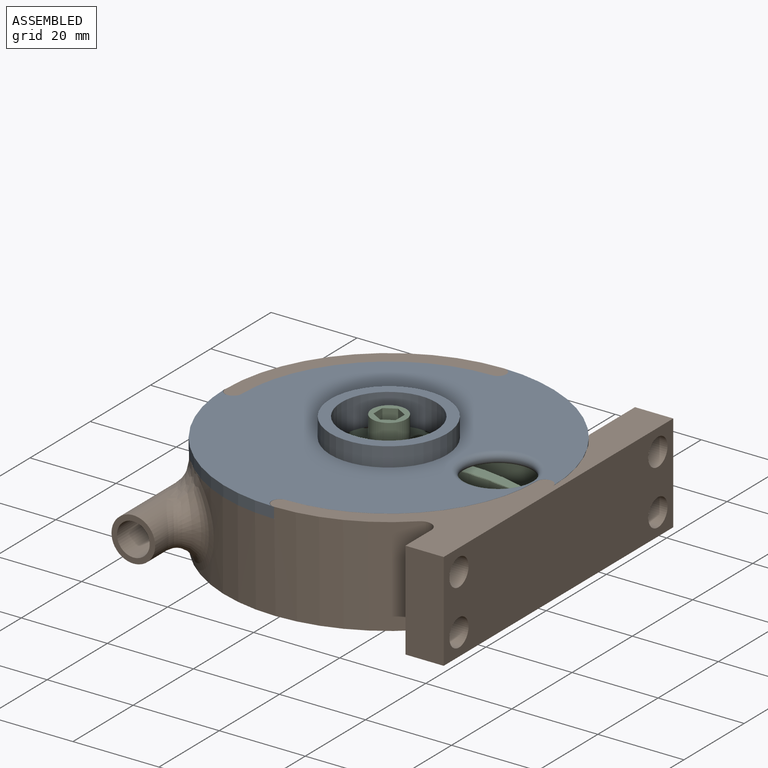
[diagram: assembled view]
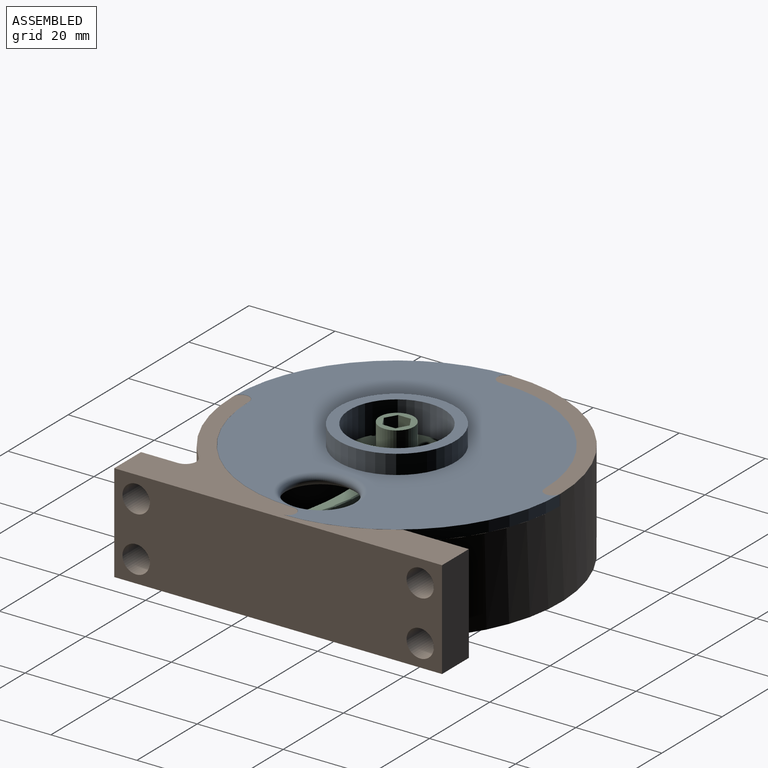
[diagram: assembled view, second angle]
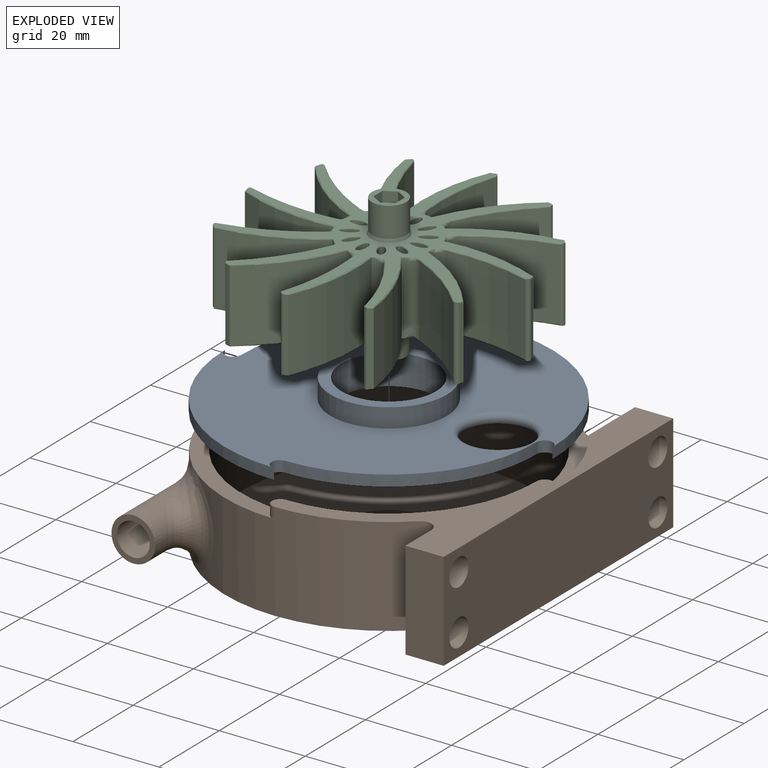
[diagram: exploded view]
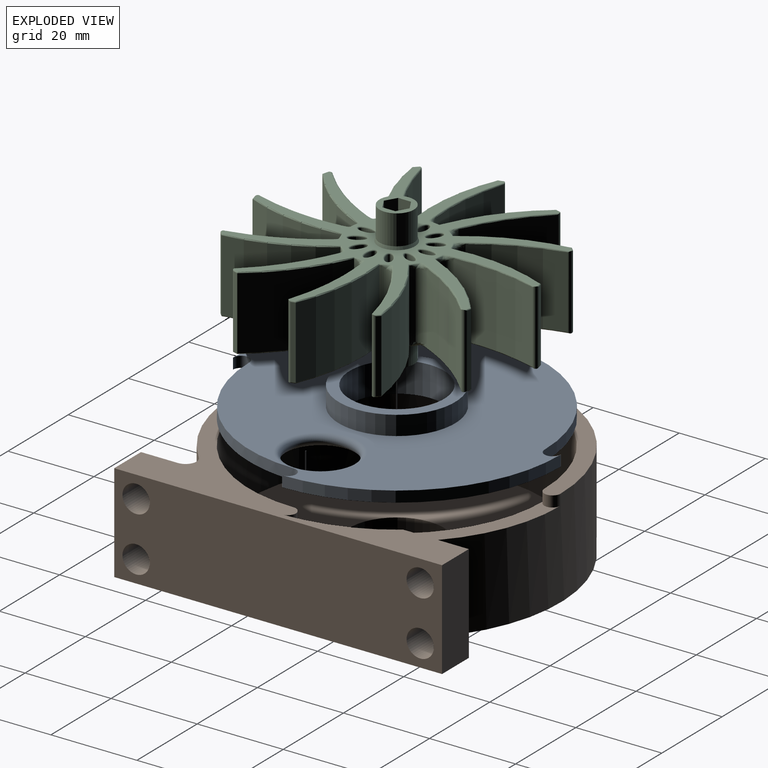
[diagram: exploded view, second angle]
ASSEMBLY  parts=3 mates=2
PART A: 14 faces, bbox 76.2x76.2x7 mm
  f0: cylinder r=1.91mm len=3.81mm, axis (0,0,-1), area 15.2mm2, adj f1,f7,f9,f10
  f1: cylinder r=38.1mm len=38.1mm, axis (0,0,-1), area 152mm2, adj f0,f2,f9,f10
  f2: cylinder r=1.91mm len=3.81mm, axis (0,0,-1), area 15.2mm2, adj f1,f3,f9,f10
  f3: cylinder r=34.29mm len=34.29mm, axis (0,0,-1), area 136.8mm2, adj f2,f4,f9,f10
  f4: cylinder r=1.91mm len=3.81mm, axis (0,0,-1), area 15.2mm2, adj f3,f5,f9,f10
  f5: cylinder r=38.1mm len=38.1mm, axis (0,0,-1), area 152mm2, adj f4,f6,f9,f10
  f6: cylinder r=1.91mm len=3.81mm, axis (0,0,-1), area 15.2mm2, adj f5,f7,f9,f10
  f7: cylinder r=34.29mm len=34.29mm, axis (0,0,-1), area 136.8mm2, adj f0,f6,f9,f10
  f8: cylinder r=11mm len=22mm, axis (0,0,-1), area 483.8mm2, adj f9,f13
  f9: plane 76.2x76.2mm, normal (0,0,1), area 3475.9mm2, adj f0,f1,f2,f3,f4,f5,f6,f7
  f10: plane 76.2x76.2mm, normal (0,0,-1), area 3280.1mm2, adj f0,f1,f2,f3,f4,f5,f6,f7
  f11: torus R=8.89mm, axis (0,0,1), area 202.6mm2, adj f9,f10
  f12: cylinder r=13.54mm len=27.08mm, axis (0,0,1), area 379.4mm2, adj f10,f13
  f13: plane 27.08x27.08mm, normal (0,0,-1), area 195.8mm2, adj f8,f12
PART B: 32 faces, bbox 77.5x81.3x27.3 mm
  f0: plane 68.58x68.58mm, normal (0,0,1), area 3313.8mm2, adj f3,f6
  f1: cylinder r=38.1mm len=66.16mm, axis (0,0,-1), area 2361.5mm2, adj f5,f7,f8,f9,f10,f16,f25,f31
  f2: plane 22.86x15.24mm, normal (-1,0,0), area 149.9mm2, adj f7,f12,f21,f23,f25,f27,f28,f31
  f3: cylinder r=34.29mm len=68.58mm, axis (0,0,-1), area 4012.5mm2, adj f0,f5,f8,f9,f10,f11,f12,f15
  f4: cylinder r=38.1mm len=51.97mm, axis (0,0,-1), area 1059.1mm2, adj f5,f7,f11,f12,f16,f30
  f5: plane 38.1x38.1mm, normal (0,0,1), area 205.2mm2, adj f1,f3,f4,f9,f11
  f6: cylinder r=11mm len=22mm, axis (0,0,-1), area 483.8mm2, adj f0,f18
  f7: plane 77.47x76.2mm, normal (0,0,-1), area 4441.5mm2, adj f1,f2,f4,f17,f19,f20,f21,f22
  f8: cylinder r=1.91mm len=3.81mm, axis (0,0,-1), area 15.2mm2, adj f1,f3,f10,f25
  f9: cylinder r=1.91mm len=3.81mm, axis (0,0,-1), area 15.2mm2, adj f1,f3,f5,f10
  f10: plane 40.01x40.01mm, normal (0,0,1), area 228mm2, adj f1,f3,f8,f9
  f11: cylinder r=1.91mm len=3.81mm, axis (0,0,-1), area 15.2mm2, adj f3,f4,f5,f12
  f12: plane 76.2x41.28mm, normal (0,0,1), area 676.6mm2, adj f2,f3,f4,f11,f19,f20,f21,f22
  f13: plane 10.16x10.16mm, normal (0,-1,0), area 35.5mm2, adj f14,f15
  f14: cylinder r=5.08mm len=25.45mm, axis (0,1,0), area 417.1mm2, adj f13,f16
  f15: cylinder r=3.81mm len=33.94mm, axis (0,1,0), area 624.4mm2, adj f3,f13
  f16: bspline ~23.12x20.33mm, area 393.6mm2, adj f1,f4,f14
  f17: cylinder r=13.54mm len=27.08mm, axis (0,0,1), area 379.4mm2, adj f7,f18
  f18: plane 27.08x27.08mm, normal (0,0,-1), area 195.8mm2, adj f6,f17
  f19: plane 22.86x8.59mm, normal (-1,0,0), area 133mm2, adj f7,f12,f20,f26,f29,f30
  f20: plane 22.86x8.89mm, normal (0,-1,0), area 203.2mm2, adj f7,f12,f19,f22
  f21: plane 22.86x8.89mm, normal (0,1,0), area 203.2mm2, adj f2,f7,f12,f22
  f22: plane 76.2x22.86mm, normal (1,0,0), area 1615.3mm2, adj f7,f12,f20,f21,f26,f27,f28,f29
  f23: cylinder r=38.1mm len=22.86mm, axis (0,0,-1), area 62.3mm2, adj f2,f12,f24,f25
  f24: cylinder r=1.91mm len=3.81mm, axis (0,0,-1), area 15.2mm2, adj f3,f12,f23,f25
  f25: plane 38.1x38.1mm, normal (0,0,1), area 213.7mm2, adj f1,f2,f3,f8,f23,f24,f31
  f26: cylinder r=3.17mm len=8.89mm, axis (1,0,0), area 177.3mm2, adj f19,f22
  f27: cylinder r=3.17mm len=8.89mm, axis (1,0,0), area 177.3mm2, adj f2,f22
  f28: cylinder r=3.17mm len=8.89mm, axis (1,0,0), area 177.3mm2, adj f2,f22
  f29: cylinder r=3.17mm len=8.89mm, axis (1,0,0), area 177.3mm2, adj f19,f22
  f30: cylinder r=2.54mm len=22.86mm, axis (0,0,-1), area 135.2mm2, adj f4,f7,f12,f19
  f31: cylinder r=2.54mm len=20.32mm, axis (0,0,-1), area 120.2mm2, adj f1,f2,f7,f25
PART C: 266 faces, bbox 69.9x69.9x32.5 mm
  f0: cylinder r=2.54mm len=15.38mm, axis (0,0,-1), area 51.1mm2, adj f1,f84,f85,f251
  f1: bspline ~3.02x1.7mm, area 3.6mm2, adj f0,f24,f84,f85,f190,f191
  f2: cylinder r=2.54mm len=15.38mm, axis (0,0,-1), area 51.1mm2, adj f3,f80,f81,f250
  f3: bspline ~2.95x1.85mm, area 3.6mm2, adj f2,f26,f80,f81,f183,f185
  f4: cylinder r=2.54mm len=15.38mm, axis (0,0,-1), area 51.1mm2, adj f5,f76,f77,f249
  f5: bspline ~2.33x2.11mm, area 3.6mm2, adj f4,f28,f76,f77,f175,f177
  f6: cylinder r=2.54mm len=15.38mm, axis (0,0,-1), area 51.1mm2, adj f7,f72,f73,f248
  f7: bspline ~3.02x1.7mm, area 3.6mm2, adj f6,f30,f72,f73,f167,f169
  f8: cylinder r=2.54mm len=15.38mm, axis (0,0,-1), area 51.1mm2, adj f9,f68,f69,f247
  f9: bspline ~2.95x1.85mm, area 3.6mm2, adj f8,f32,f68,f69,f159,f161
  f10: cylinder r=2.54mm len=15.38mm, axis (0,0,-1), area 51.1mm2, adj f11,f64,f65,f246
  f11: bspline ~2.33x2.11mm, area 3.6mm2, adj f10,f34,f64,f65,f151,f153
  f12: cylinder r=2.54mm len=15.38mm, axis (0,0,-1), area 51.1mm2, adj f13,f60,f61,f245
  f13: bspline ~3.02x1.7mm, area 3.6mm2, adj f12,f36,f60,f61,f144,f145
  f14: cylinder r=2.54mm len=15.38mm, axis (0,0,-1), area 51.1mm2, adj f15,f56,f57,f244
  f15: bspline ~2.95x1.85mm, area 3.6mm2, adj f14,f38,f56,f57,f150,f152
  f16: cylinder r=2.54mm len=15.38mm, axis (0,0,-1), area 51.1mm2, adj f17,f52,f53,f243
  f17: bspline ~2.33x2.11mm, area 3.6mm2, adj f16,f40,f52,f53,f158,f160
  f18: cylinder r=2.54mm len=15.38mm, axis (0,0,-1), area 51.1mm2, adj f19,f96,f97,f242
  f19: bspline ~3.02x1.7mm, area 3.6mm2, adj f18,f42,f96,f97,f166,f168
  f20: cylinder r=2.54mm len=15.38mm, axis (0,0,-1), area 51.1mm2, adj f21,f92,f93,f241
  f21: bspline ~2.95x1.85mm, area 3.6mm2, adj f20,f44,f92,f93,f174,f176
  f22: cylinder r=2.54mm len=15.38mm, axis (0,0,-1), area 51.1mm2, adj f23,f88,f89,f240
  f23: bspline ~2.33x2.11mm, area 3.6mm2, adj f22,f46,f88,f89,f182,f184
  f24: bspline ~0.81x0.56mm, area 0mm2, adj f1,f190,f191
  f25: bspline ~0.81x0.56mm, area 0mm2, adj f238,f239,f251
  f26: bspline ~0.83x0.54mm, area 0mm2, adj f3,f183,f185
  f27: bspline ~0.83x0.54mm, area 0mm2, adj f231,f233,f250
  f28: bspline ~0.63x0.63mm, area 0mm2, adj f5,f175,f177
  f29: bspline ~0.63x0.63mm, area 0mm2, adj f223,f225,f249
  f30: bspline ~0.81x0.56mm, area 0mm2, adj f7,f167,f169
  f31: bspline ~0.81x0.56mm, area 0mm2, adj f215,f217,f248
  f32: bspline ~0.83x0.54mm, area 0mm2, adj f9,f159,f161
  f33: bspline ~0.83x0.54mm, area 0mm2, adj f207,f209,f247
  f34: bspline ~0.63x0.63mm, area 0mm2, adj f11,f151,f153
  f35: bspline ~0.63x0.63mm, area 0mm2, adj f199,f201,f246
  f36: bspline ~0.81x0.56mm, area 0mm2, adj f13,f144,f145
  f37: bspline ~0.81x0.56mm, area 0mm2, adj f192,f193,f245
  f38: bspline ~0.83x0.54mm, area 0mm2, adj f15,f150,f152
  f39: bspline ~0.83x0.54mm, area 0mm2, adj f198,f200,f244
  f40: bspline ~0.63x0.63mm, area 0mm2, adj f17,f158,f160
  f41: bspline ~0.63x0.63mm, area 0mm2, adj f206,f208,f243
  f42: bspline ~0.81x0.56mm, area 0mm2, adj f19,f166,f168
  f43: bspline ~0.81x0.56mm, area 0mm2, adj f214,f216,f242
  f44: bspline ~0.83x0.54mm, area 0mm2, adj f21,f174,f176
  f45: bspline ~0.83x0.54mm, area 0mm2, adj f222,f224,f241
  f46: bspline ~0.63x0.63mm, area 0mm2, adj f23,f182,f184
  f47: bspline ~0.63x0.63mm, area 0mm2, adj f230,f232,f240
  f48: cylinder r=4mm len=8mm, axis (0,0,-1), area 174mm2, adj f49,f264
  f49: plane 8x8mm, normal (0,0,-1), area 26.9mm2, adj f48,f102,f103,f104,f105,f106,f107
  f50: plane 16.76x0.93mm, normal (-0.96,0.26,0), area 16.1mm2, adj f51,f164,f212,f252
  f51: cylinder r=45.37mm len=18.28mm, axis (0,0,-1), area 394.2mm2, adj f50,f52,f162,f210
  f52: cylinder r=11mm len=16.76mm, axis (0,0,-1), area 9mm2, adj f16,f17,f51,f160,f208,f243
  f53: cylinder r=50.37mm len=19.68mm, axis (0,0,-1), area 333.9mm2, adj f16,f17,f158,f206,f243,f253
  f54: plane 16.76x0.93mm, normal (-0.97,-0.26,0), area 16.1mm2, adj f55,f156,f204,f253
  f55: cylinder r=45.37mm len=23.02mm, axis (0,0,-1), area 394.2mm2, adj f54,f56,f154,f202
  f56: cylinder r=11mm len=16.76mm, axis (0,0,-1), area 9mm2, adj f14,f15,f55,f152,f200,f244
  f57: cylinder r=50.37mm len=18.09mm, axis (0,0,-1), area 333.9mm2, adj f14,f15,f150,f198,f244,f254
  f58: plane 16.76x0.68mm, normal (-0.71,-0.7,0), area 16.1mm2, adj f59,f148,f196,f254
  f59: cylinder r=45.37mm len=21.59mm, axis (0,0,-1), area 394.2mm2, adj f58,f60,f146,f194
  f60: cylinder r=11mm len=16.76mm, axis (0,0,-1), area 9mm2, adj f12,f13,f59,f144,f192,f245
  f61: cylinder r=50.37mm len=16.76mm, axis (0,0,-1), area 333.9mm2, adj f12,f13,f145,f193,f245,f255
  f62: plane 16.76x0.93mm, normal (-0.26,-0.96,0), area 16.1mm2, adj f63,f147,f195,f255
  f63: cylinder r=45.37mm len=18.28mm, axis (0,0,-1), area 394.2mm2, adj f62,f64,f149,f197
  f64: cylinder r=11mm len=16.76mm, axis (0,0,-1), area 9mm2, adj f10,f11,f63,f151,f199,f246
  f65: cylinder r=50.37mm len=19.68mm, axis (0,0,-1), area 333.9mm2, adj f10,f11,f153,f201,f246,f256
  f66: plane 16.76x0.93mm, normal (0.26,-0.97,0), area 16.1mm2, adj f67,f155,f203,f256
  f67: cylinder r=45.37mm len=23.02mm, axis (0,0,-1), area 394.2mm2, adj f66,f68,f157,f205
  f68: cylinder r=11mm len=16.76mm, axis (0,0,-1), area 9mm2, adj f8,f9,f67,f159,f207,f247
  f69: cylinder r=50.37mm len=18.09mm, axis (0,0,-1), area 333.9mm2, adj f8,f9,f161,f209,f247,f257
  f70: plane 16.76x0.68mm, normal (0.7,-0.71,0), area 16.1mm2, adj f71,f163,f211,f257
  f71: cylinder r=45.37mm len=21.59mm, axis (0,0,-1), area 394.2mm2, adj f70,f72,f165,f213
  f72: cylinder r=11mm len=16.76mm, axis (0,0,-1), area 9mm2, adj f6,f7,f71,f167,f215,f248
  f73: cylinder r=50.37mm len=16.76mm, axis (0,0,-1), area 333.9mm2, adj f6,f7,f169,f217,f248,f258
  f74: plane 16.76x0.93mm, normal (0.96,-0.26,0), area 16.1mm2, adj f75,f171,f219,f258
  f75: cylinder r=45.37mm len=18.28mm, axis (0,0,-1), area 394.2mm2, adj f74,f76,f173,f221
  f76: cylinder r=11mm len=16.76mm, axis (0,0,-1), area 9mm2, adj f4,f5,f75,f175,f223,f249
  f77: cylinder r=50.37mm len=19.68mm, axis (0,0,-1), area 333.9mm2, adj f4,f5,f177,f225,f249,f259
  f78: plane 16.76x0.93mm, normal (0.97,0.26,0), area 16.1mm2, adj f79,f179,f227,f259
  f79: cylinder r=45.37mm len=23.02mm, axis (0,0,-1), area 394.2mm2, adj f78,f80,f181,f229
  f80: cylinder r=11mm len=16.76mm, axis (0,0,-1), area 9mm2, adj f2,f3,f79,f183,f231,f250
  f81: cylinder r=50.37mm len=18.09mm, axis (0,0,-1), area 333.9mm2, adj f2,f3,f185,f233,f250,f260
  f82: plane 16.76x0.68mm, normal (0.71,0.7,0), area 16.1mm2, adj f83,f187,f235,f260
  f83: cylinder r=45.37mm len=21.59mm, axis (0,0,-1), area 394.2mm2, adj f82,f84,f189,f237
  f84: cylinder r=11mm len=16.76mm, axis (0,0,-1), area 9mm2, adj f0,f1,f83,f191,f239,f251
  f85: cylinder r=50.37mm len=16.76mm, axis (0,0,-1), area 333.9mm2, adj f0,f1,f190,f238,f251,f261
  f86: plane 16.76x0.93mm, normal (0.26,0.96,0), area 16.1mm2, adj f87,f188,f236,f261
  f87: cylinder r=45.37mm len=18.28mm, axis (0,0,-1), area 394.2mm2, adj f86,f88,f186,f234
  f88: cylinder r=11mm len=16.76mm, axis (0,0,-1), area 9mm2, adj f22,f23,f87,f184,f232,f240
  f89: cylinder r=50.37mm len=19.68mm, axis (0,0,-1), area 333.9mm2, adj f22,f23,f182,f230,f240,f262
  f90: plane 16.76x0.93mm, normal (-0.26,0.97,0), area 16.1mm2, adj f91,f180,f228,f262
  f91: cylinder r=45.37mm len=23.02mm, axis (0,0,-1), area 394.2mm2, adj f90,f92,f178,f226
  f92: cylinder r=11mm len=16.76mm, axis (0,0,-1), area 9mm2, adj f20,f21,f91,f176,f224,f241
  f93: cylinder r=50.37mm len=18.09mm, axis (0,0,-1), area 333.9mm2, adj f20,f21,f174,f222,f241,f263
  f94: plane 16.76x0.68mm, normal (-0.7,0.71,0), area 16.1mm2, adj f95,f172,f220,f263
  f95: cylinder r=45.37mm len=21.59mm, axis (0,0,-1), area 394.2mm2, adj f94,f96,f170,f218
  f96: cylinder r=11mm len=16.76mm, axis (0,0,-1), area 9mm2, adj f18,f19,f95,f168,f216,f242
  f97: cylinder r=50.37mm len=16.76mm, axis (0,0,-1), area 333.9mm2, adj f18,f19,f166,f214,f242,f252
  f98: plane 67.31x67.31mm, normal (0,0,1), area 854.3mm2, adj f120,f122,f124,f126,f128,f130,f132,f134
  f99: plane 67.31x67.31mm, normal (0,0,-1), area 854.3mm2, adj f121,f123,f125,f127,f129,f131,f133,f135
  f100: cylinder r=4mm len=8mm, axis (0,0,-1), area 174mm2, adj f101,f265
  f101: plane 8x8mm, normal (0,0,1), area 26.9mm2, adj f100,f102,f103,f104,f105,f106,f107
  f102: plane 32.51x3mm, normal (1,0,0), area 97.5mm2, adj f49,f101,f103,f107
  f103: plane 32.51x2.6mm, normal (0.5,0.87,0), area 97.5mm2, adj f49,f101,f102,f104
  f104: plane 32.51x2.6mm, normal (-0.5,0.87,0), area 97.5mm2, adj f49,f101,f103,f105
  f105: plane 32.51x3mm, normal (-1,0,0), area 97.5mm2, adj f49,f101,f104,f106
  f106: plane 32.51x2.6mm, normal (-0.5,-0.87,0), area 97.5mm2, adj f49,f101,f105,f107
  f107: plane 32.51x2.6mm, normal (0.5,-0.87,0), area 97.5mm2, adj f49,f101,f102,f106
  f108: extruded ~16.76x3.41mm, area 151.3mm2, adj f142,f143
  f109: extruded ~16.76x3.8mm, area 151.3mm2, adj f140,f141
  f110: extruded ~16.76x3.41mm, area 151.3mm2, adj f138,f139
  f111: extruded ~16.76x3.41mm, area 151.3mm2, adj f136,f137
  f112: extruded ~16.76x3.8mm, area 151.3mm2, adj f134,f135
  f113: extruded ~16.76x3.41mm, area 151.3mm2, adj f132,f133
  f114: extruded ~16.76x3.41mm, area 151.3mm2, adj f130,f131
  f115: extruded ~16.76x3.8mm, area 151.3mm2, adj f128,f129
  f116: extruded ~16.76x3.41mm, area 151.3mm2, adj f126,f127
  f117: extruded ~16.76x3.41mm, area 151.3mm2, adj f124,f125
  f118: extruded ~16.76x3.8mm, area 151.3mm2, adj f122,f123
  f119: extruded ~16.76x3.41mm, area 151.3mm2, adj f120,f121
  f120: bspline ~3.91x2.94mm, area 3.8mm2, adj f98,f119
  f121: bspline ~3.92x2.94mm, area 3.8mm2, adj f99,f119
  f122: bspline ~4.31x2.25mm, area 3.8mm2, adj f98,f118
  f123: bspline ~4.32x2.25mm, area 3.8mm2, adj f99,f118
  f124: bspline ~3.91x2.94mm, area 3.8mm2, adj f98,f117
  f125: bspline ~3.92x2.94mm, area 3.8mm2, adj f99,f117
  f126: bspline ~3.91x2.93mm, area 3.8mm2, adj f98,f116
  f127: bspline ~3.91x2.94mm, area 3.8mm2, adj f99,f116
  f128: bspline ~4.32x2.25mm, area 3.8mm2, adj f98,f115
  f129: bspline ~4.31x2.25mm, area 3.8mm2, adj f99,f115
  f130: bspline ~3.91x2.94mm, area 3.8mm2, adj f98,f114
  f131: bspline ~3.92x2.94mm, area 3.8mm2, adj f99,f114
  f132: bspline ~3.91x2.93mm, area 3.8mm2, adj f98,f113
  f133: bspline ~3.91x2.94mm, area 3.8mm2, adj f99,f113
  f134: bspline ~4.31x2.25mm, area 3.8mm2, adj f98,f112
  f135: bspline ~4.32x2.25mm, area 3.8mm2, adj f99,f112
  f136: bspline ~3.92x2.94mm, area 3.8mm2, adj f98,f111
  f137: bspline ~3.91x2.94mm, area 3.8mm2, adj f99,f111
  f138: bspline ~3.91x2.94mm, area 3.8mm2, adj f98,f110
  f139: bspline ~3.92x2.94mm, area 3.8mm2, adj f99,f110
  f140: bspline ~4.31x2.25mm, area 3.8mm2, adj f98,f109
  f141: bspline ~4.32x2.25mm, area 3.8mm2, adj f99,f109
  f142: bspline ~3.91x2.94mm, area 3.8mm2, adj f98,f108
  f143: bspline ~3.92x2.94mm, area 3.8mm2, adj f99,f108
  f144: torus R=10.75mm, axis (0,0,1), area 0.6mm2, adj f13,f36,f60,f99,f146
  f145: torus R=50.62mm, axis (0,0,1), area 8.5mm2, adj f13,f36,f61,f99,f255
  f146: torus R=45.12mm, axis (0,0,1), area 9.4mm2, adj f59,f99,f144,f148
  f147: cylinder r=0.25mm len=1.54mm, axis (0.96,-0.26,0), area 0.5mm2, adj f62,f99,f149,f255
  f148: cylinder r=0.25mm len=1.27mm, axis (0.7,-0.71,0), area 0.5mm2, adj f58,f99,f146,f254
  f149: torus R=45.12mm, axis (0,0,1), area 9.4mm2, adj f63,f99,f147,f151
  f150: torus R=50.62mm, axis (0,0,1), area 8.5mm2, adj f15,f38,f57,f99,f254
  f151: torus R=10.75mm, axis (0,0,1), area 0.6mm2, adj f11,f34,f64,f99,f149
  f152: torus R=10.75mm, axis (0,0,1), area 0.6mm2, adj f15,f38,f56,f99,f154
  f153: torus R=50.62mm, axis (0,0,1), area 8.5mm2, adj f11,f34,f65,f99,f256
  f154: torus R=45.12mm, axis (0,0,1), area 9.4mm2, adj f55,f99,f152,f156
  f155: cylinder r=0.25mm len=1.54mm, axis (0.97,0.26,0), area 0.5mm2, adj f66,f99,f157,f256
  f156: cylinder r=0.25mm len=1.54mm, axis (0.26,-0.97,0), area 0.5mm2, adj f54,f99,f154,f253
  f157: torus R=45.12mm, axis (0,0,1), area 9.4mm2, adj f67,f99,f155,f159
  f158: torus R=50.62mm, axis (0,0,1), area 8.5mm2, adj f17,f40,f53,f99,f253
  f159: torus R=10.75mm, axis (0,0,1), area 0.6mm2, adj f9,f32,f68,f99,f157
  f160: torus R=10.75mm, axis (0,0,1), area 0.6mm2, adj f17,f40,f52,f99,f162
  f161: torus R=50.62mm, axis (0,0,1), area 8.5mm2, adj f9,f32,f69,f99,f257
  f162: torus R=45.12mm, axis (0,0,1), area 9.4mm2, adj f51,f99,f160,f164
  f163: cylinder r=0.25mm len=1.27mm, axis (0.71,0.7,0), area 0.5mm2, adj f70,f99,f165,f257
  f164: cylinder r=0.25mm len=1.54mm, axis (-0.26,-0.96,0), area 0.5mm2, adj f50,f99,f162,f252
  f165: torus R=45.12mm, axis (0,0,1), area 9.4mm2, adj f71,f99,f163,f167
  f166: torus R=50.62mm, axis (0,0,1), area 8.5mm2, adj f19,f42,f97,f99,f252
  f167: torus R=10.75mm, axis (0,0,1), area 0.6mm2, adj f7,f30,f72,f99,f165
  f168: torus R=10.75mm, axis (0,0,1), area 0.6mm2, adj f19,f42,f96,f99,f170
  f169: torus R=50.62mm, axis (0,0,1), area 8.5mm2, adj f7,f30,f73,f99,f258
  f170: torus R=45.12mm, axis (0,0,1), area 9.4mm2, adj f95,f99,f168,f172
  f171: cylinder r=0.25mm len=1.54mm, axis (0.26,0.96,0), area 0.5mm2, adj f74,f99,f173,f258
  f172: cylinder r=0.25mm len=1.27mm, axis (-0.71,-0.7,0), area 0.5mm2, adj f94,f99,f170,f263
  f173: torus R=45.12mm, axis (0,0,1), area 9.4mm2, adj f75,f99,f171,f175
  f174: torus R=50.62mm, axis (0,0,1), area 8.5mm2, adj f21,f44,f93,f99,f263
  f175: torus R=10.75mm, axis (0,0,1), area 0.6mm2, adj f5,f28,f76,f99,f173
  f176: torus R=10.75mm, axis (0,0,1), area 0.6mm2, adj f21,f44,f92,f99,f178
  f177: torus R=50.62mm, axis (0,0,1), area 8.5mm2, adj f5,f28,f77,f99,f259
  f178: torus R=45.12mm, axis (0,0,1), area 9.4mm2, adj f91,f99,f176,f180
  f179: cylinder r=0.25mm len=1.54mm, axis (-0.26,0.97,0), area 0.5mm2, adj f78,f99,f181,f259
  f180: cylinder r=0.25mm len=1.54mm, axis (-0.97,-0.26,0), area 0.5mm2, adj f90,f99,f178,f262
  f181: torus R=45.12mm, axis (0,0,1), area 9.4mm2, adj f79,f99,f179,f183
  f182: torus R=50.62mm, axis (0,0,1), area 8.5mm2, adj f23,f46,f89,f99,f262
  f183: torus R=10.75mm, axis (0,0,1), area 0.6mm2, adj f3,f26,f80,f99,f181
  f184: torus R=10.75mm, axis (0,0,1), area 0.6mm2, adj f23,f46,f88,f99,f186
  f185: torus R=50.62mm, axis (0,0,1), area 8.5mm2, adj f3,f26,f81,f99,f260
  f186: torus R=45.12mm, axis (0,0,1), area 9.4mm2, adj f87,f99,f184,f188
  f187: cylinder r=0.25mm len=1.27mm, axis (-0.7,0.71,0), area 0.5mm2, adj f82,f99,f189,f260
  f188: cylinder r=0.25mm len=1.54mm, axis (-0.96,0.26,0), area 0.5mm2, adj f86,f99,f186,f261
  f189: torus R=45.12mm, axis (0,0,1), area 9.4mm2, adj f83,f99,f187,f191
  f190: torus R=50.62mm, axis (0,0,1), area 8.5mm2, adj f1,f24,f85,f99,f261
  f191: torus R=10.75mm, axis (0,0,1), area 0.6mm2, adj f1,f24,f84,f99,f189
  f192: torus R=10.75mm, axis (0,0,1), area 0.6mm2, adj f37,f60,f98,f194,f245
  f193: torus R=50.62mm, axis (0,0,1), area 8.5mm2, adj f37,f61,f98,f245,f255
  f194: torus R=45.12mm, axis (0,0,1), area 9.4mm2, adj f59,f98,f192,f196
  f195: cylinder r=0.25mm len=1.54mm, axis (-0.96,0.26,0), area 0.5mm2, adj f62,f98,f197,f255
  f196: cylinder r=0.25mm len=1.27mm, axis (-0.7,0.71,0), area 0.5mm2, adj f58,f98,f194,f254
  f197: torus R=45.12mm, axis (0,0,1), area 9.4mm2, adj f63,f98,f195,f199
  f198: torus R=50.62mm, axis (0,0,1), area 8.5mm2, adj f39,f57,f98,f244,f254
  f199: torus R=10.75mm, axis (0,0,1), area 0.6mm2, adj f35,f64,f98,f197,f246
  f200: torus R=10.75mm, axis (0,0,1), area 0.6mm2, adj f39,f56,f98,f202,f244
  f201: torus R=50.62mm, axis (0,0,1), area 8.5mm2, adj f35,f65,f98,f246,f256
  f202: torus R=45.12mm, axis (0,0,1), area 9.4mm2, adj f55,f98,f200,f204
  f203: cylinder r=0.25mm len=1.54mm, axis (-0.97,-0.26,0), area 0.5mm2, adj f66,f98,f205,f256
  f204: cylinder r=0.25mm len=1.54mm, axis (-0.26,0.97,0), area 0.5mm2, adj f54,f98,f202,f253
  f205: torus R=45.12mm, axis (0,0,1), area 9.4mm2, adj f67,f98,f203,f207
  f206: torus R=50.62mm, axis (0,0,1), area 8.5mm2, adj f41,f53,f98,f243,f253
  f207: torus R=10.75mm, axis (0,0,1), area 0.6mm2, adj f33,f68,f98,f205,f247
  f208: torus R=10.75mm, axis (0,0,1), area 0.6mm2, adj f41,f52,f98,f210,f243
  f209: torus R=50.62mm, axis (0,0,1), area 8.5mm2, adj f33,f69,f98,f247,f257
  f210: torus R=45.12mm, axis (0,0,1), area 9.4mm2, adj f51,f98,f208,f212
  f211: cylinder r=0.25mm len=1.27mm, axis (-0.71,-0.7,0), area 0.5mm2, adj f70,f98,f213,f257
  f212: cylinder r=0.25mm len=1.54mm, axis (0.26,0.96,0), area 0.5mm2, adj f50,f98,f210,f252
  f213: torus R=45.12mm, axis (0,0,1), area 9.4mm2, adj f71,f98,f211,f215
  f214: torus R=50.62mm, axis (0,0,1), area 8.5mm2, adj f43,f97,f98,f242,f252
  f215: torus R=10.75mm, axis (0,0,1), area 0.6mm2, adj f31,f72,f98,f213,f248
  f216: torus R=10.75mm, axis (0,0,1), area 0.6mm2, adj f43,f96,f98,f218,f242
  f217: torus R=50.62mm, axis (0,0,1), area 8.5mm2, adj f31,f73,f98,f248,f258
  f218: torus R=45.12mm, axis (0,0,1), area 9.4mm2, adj f95,f98,f216,f220
  f219: cylinder r=0.25mm len=1.54mm, axis (-0.26,-0.96,0), area 0.5mm2, adj f74,f98,f221,f258
  f220: cylinder r=0.25mm len=1.27mm, axis (0.71,0.7,0), area 0.5mm2, adj f94,f98,f218,f263
  f221: torus R=45.12mm, axis (0,0,1), area 9.4mm2, adj f75,f98,f219,f223
  f222: torus R=50.62mm, axis (0,0,1), area 8.5mm2, adj f45,f93,f98,f241,f263
  f223: torus R=10.75mm, axis (0,0,1), area 0.6mm2, adj f29,f76,f98,f221,f249
  f224: torus R=10.75mm, axis (0,0,1), area 0.6mm2, adj f45,f92,f98,f226,f241
  f225: torus R=50.62mm, axis (0,0,1), area 8.5mm2, adj f29,f77,f98,f249,f259
  f226: torus R=45.12mm, axis (0,0,1), area 9.4mm2, adj f91,f98,f224,f228
  f227: cylinder r=0.25mm len=1.54mm, axis (0.26,-0.97,0), area 0.5mm2, adj f78,f98,f229,f259
  f228: cylinder r=0.25mm len=1.54mm, axis (0.97,0.26,0), area 0.5mm2, adj f90,f98,f226,f262
  f229: torus R=45.12mm, axis (0,0,1), area 9.4mm2, adj f79,f98,f227,f231
  f230: torus R=50.62mm, axis (0,0,1), area 8.5mm2, adj f47,f89,f98,f240,f262
  f231: torus R=10.75mm, axis (0,0,1), area 0.6mm2, adj f27,f80,f98,f229,f250
  f232: torus R=10.75mm, axis (0,0,1), area 0.6mm2, adj f47,f88,f98,f234,f240
  f233: torus R=50.62mm, axis (0,0,1), area 8.5mm2, adj f27,f81,f98,f250,f260
  f234: torus R=45.12mm, axis (0,0,1), area 9.4mm2, adj f87,f98,f232,f236
  f235: cylinder r=0.25mm len=1.27mm, axis (0.7,-0.71,0), area 0.5mm2, adj f82,f98,f237,f260
  f236: cylinder r=0.25mm len=1.54mm, axis (0.96,-0.26,0), area 0.5mm2, adj f86,f98,f234,f261
  f237: torus R=45.12mm, axis (0,0,1), area 9.4mm2, adj f83,f98,f235,f239
  f238: torus R=50.62mm, axis (0,0,1), area 8.5mm2, adj f25,f85,f98,f251,f261
  f239: torus R=10.75mm, axis (0,0,1), area 0.6mm2, adj f25,f84,f98,f237,f251
  f240: bspline ~2.33x2.11mm, area 3.6mm2, adj f22,f47,f88,f89,f230,f232
  f241: bspline ~2.95x1.85mm, area 3.6mm2, adj f20,f45,f92,f93,f222,f224
  f242: bspline ~3.02x1.7mm, area 3.6mm2, adj f18,f43,f96,f97,f214,f216
  f243: bspline ~2.33x2.11mm, area 3.6mm2, adj f16,f41,f52,f53,f206,f208
  f244: bspline ~2.95x1.85mm, area 3.6mm2, adj f14,f39,f56,f57,f198,f200
  f245: bspline ~3.02x1.7mm, area 3.6mm2, adj f12,f37,f60,f61,f192,f193
  f246: bspline ~2.33x2.11mm, area 3.6mm2, adj f10,f35,f64,f65,f199,f201
  f247: bspline ~2.95x1.85mm, area 3.6mm2, adj f8,f33,f68,f69,f207,f209
  f248: bspline ~3.02x1.7mm, area 3.6mm2, adj f6,f31,f72,f73,f215,f217
  f249: bspline ~2.33x2.11mm, area 3.6mm2, adj f4,f29,f76,f77,f223,f225
  f250: bspline ~2.95x1.85mm, area 3.6mm2, adj f2,f27,f80,f81,f231,f233
  f251: bspline ~3.02x1.7mm, area 3.6mm2, adj f0,f25,f84,f85,f238,f239
  f252: cylinder r=0.76mm len=17.27mm, axis (0,0,-1), area 27.7mm2, adj f50,f97,f98,f99,f164,f166,f212,f214
  f253: cylinder r=0.76mm len=17.27mm, axis (0,0,-1), area 27.7mm2, adj f53,f54,f98,f99,f156,f158,f204,f206
  f254: cylinder r=0.76mm len=17.27mm, axis (0,0,-1), area 27.7mm2, adj f57,f58,f98,f99,f148,f150,f196,f198
  f255: cylinder r=0.76mm len=17.27mm, axis (0,0,-1), area 27.7mm2, adj f61,f62,f98,f99,f145,f147,f193,f195
  f256: cylinder r=0.76mm len=17.27mm, axis (0,0,-1), area 27.7mm2, adj f65,f66,f98,f99,f153,f155,f201,f203
  f257: cylinder r=0.76mm len=17.27mm, axis (0,0,-1), area 27.7mm2, adj f69,f70,f98,f99,f161,f163,f209,f211
  f258: cylinder r=0.76mm len=17.27mm, axis (0,0,-1), area 27.7mm2, adj f73,f74,f98,f99,f169,f171,f217,f219
  f259: cylinder r=0.76mm len=17.27mm, axis (0,0,-1), area 27.7mm2, adj f77,f78,f98,f99,f177,f179,f225,f227
  f260: cylinder r=0.76mm len=17.27mm, axis (0,0,-1), area 27.7mm2, adj f81,f82,f98,f99,f185,f187,f233,f235
  f261: cylinder r=0.76mm len=17.27mm, axis (0,0,-1), area 27.7mm2, adj f85,f86,f98,f99,f188,f190,f236,f238
  f262: cylinder r=0.76mm len=17.27mm, axis (0,0,-1), area 27.7mm2, adj f89,f90,f98,f99,f180,f182,f228,f230
  f263: cylinder r=0.76mm len=17.27mm, axis (0,0,-1), area 27.7mm2, adj f93,f94,f98,f99,f172,f174,f220,f222
  f264: cone r=4.25mm half-angle=20deg, axis (0,0,1), area 19.3mm2, adj f48,f99
  f265: cone r=4mm half-angle=20deg, axis (0,0,-1), area 19.3mm2, adj f98,f100
PLACE A rot(axis=(1,0,0),180deg) t=(-13.22,-4.83,27.01)mm
PLACE B t=(-13.15,-4.83,4.15)mm
PLACE C t=(-13.15,-4.83,-0.57)mm
MATE fastened C.f48 <-> B.f6  axis (0,0,-1) through (-13.15,-4.83,-0.57)mm
MATE fastened A.f6 <-> B.f12  axis (0,0,1) through (22.97,-4.83,27.01)mm
